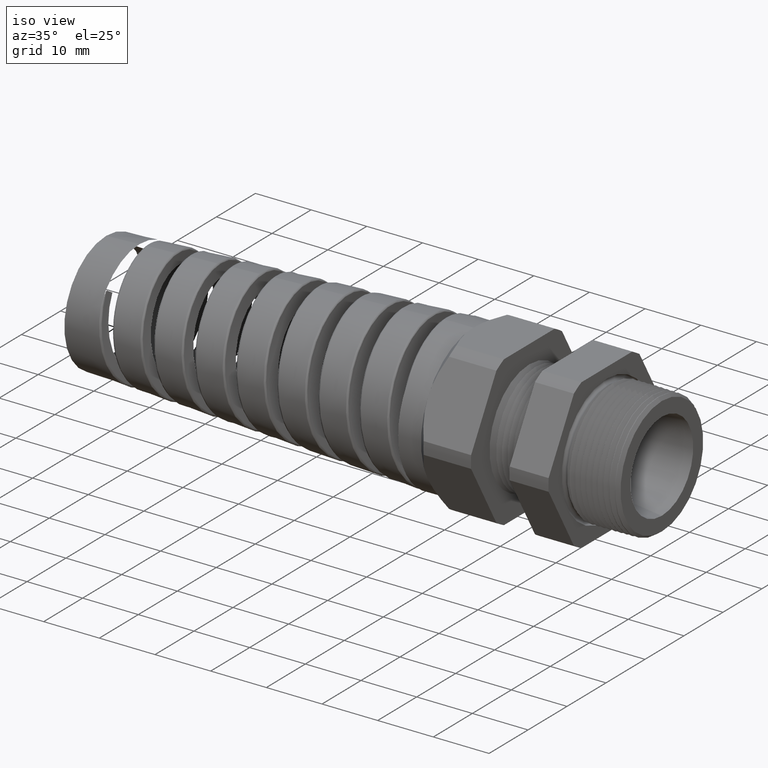
[diagram: clean part render]
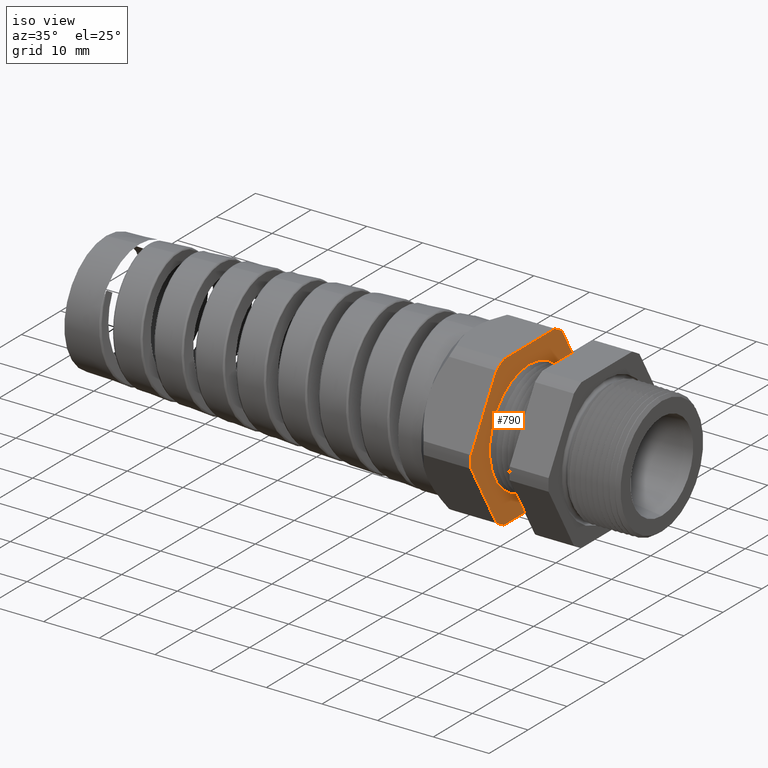
[diagram: same view with one face highlighted and labeled with its STEP entity id]
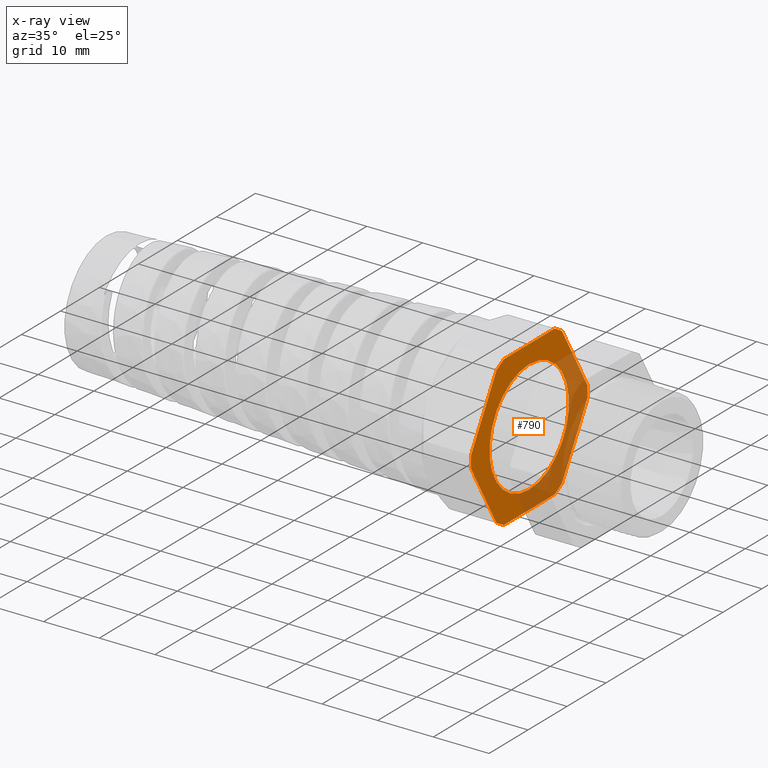
[diagram: x-ray of the same camera — body ghosted, the highlighted face saturated]
A machine part, iso view. The second image highlights one B-rep face of the part: STEP entity #790.
The next image is the same camera in x-ray: the body ghosted, the highlighted face saturated — about 39% of this face is hidden behind the body in this view.
In plain terms, the highlighted planar face has unit normal (1, 0, 0).
Its self-contained STEP definition (entity closure, byte-faithful):
#140 = EDGE_CURVE ( 'NONE', #187, #221, #7481, .T. ) ;
#187 = VERTEX_POINT ( 'NONE', #4915 ) ;
#193 = EDGE_CURVE ( 'NONE', #295, #246, #4912, .T. ) ;
#203 = VERTEX_POINT ( 'NONE', #4874 ) ;
#205 = EDGE_CURVE ( 'NONE', #246, #203, #4873, .T. ) ;
#210 = VERTEX_POINT ( 'NONE', #4860 ) ;
#212 = EDGE_CURVE ( 'NONE', #221, #210, #4859, .T. ) ;
#221 = VERTEX_POINT ( 'NONE', #4834 ) ;
#231 = EDGE_CURVE ( 'NONE', #203, #187, #4799, .T. ) ;
#239 = VERTEX_POINT ( 'NONE', #4774 ) ;
#241 = EDGE_CURVE ( 'NONE', #253, #239, #4773, .T. ) ;
#246 = VERTEX_POINT ( 'NONE', #4758 ) ;
#253 = VERTEX_POINT ( 'NONE', #4746 ) ;
#255 = EDGE_CURVE ( 'NONE', #210, #253, #4745, .T. ) ;
#295 = VERTEX_POINT ( 'NONE', #4702 ) ;
#340 = VERTEX_POINT ( 'NONE', #5075 ) ;
#342 = EDGE_CURVE ( 'NONE', #353, #340, #5074, .T. ) ;
#353 = VERTEX_POINT ( 'NONE', #5038 ) ;
#355 = EDGE_CURVE ( 'NONE', #396, #353, #5037, .T. ) ;
#396 = VERTEX_POINT ( 'NONE', #4945 ) ;
#398 = EDGE_CURVE ( 'NONE', #442, #396, #4944, .T. ) ;
#416 = EDGE_CURVE ( 'NONE', #239, #442, #7599, .T. ) ;
#442 = VERTEX_POINT ( 'NONE', #7846 ) ;
#447 = EDGE_CURVE ( 'NONE', #340, #295, #7844, .T. ) ;
#722 = EDGE_LOOP ( 'NONE', ( #723, #2024, #2022, #4216, #4215, #4214, #4213, #4212, #4123, #4119, #4117, #4116 ) ) ;
#723 = ORIENTED_EDGE ( 'NONE', *, *, #447, .T. ) ;
#724 = ORIENTED_EDGE ( 'NONE', *, *, #727, .F. ) ;
#725 = ORIENTED_EDGE ( 'NONE', *, *, #3708, .F. ) ;
#726 = EDGE_LOOP ( 'NONE', ( #724, #725 ) ) ;
#727 = EDGE_CURVE ( 'NONE', #3709, #3699, #9076, .T. ) ;
#790 = ADVANCED_FACE ( 'NONE', ( #9151, #9150 ), #9149, .T. ) ;
#2022 = ORIENTED_EDGE ( 'NONE', *, *, #205, .T. ) ;
#2024 = ORIENTED_EDGE ( 'NONE', *, *, #193, .T. ) ;
#3699 = VERTEX_POINT ( 'NONE', #9992 ) ;
#3708 = EDGE_CURVE ( 'NONE', #3699, #3709, #9976, .T. ) ;
#3709 = VERTEX_POINT ( 'NONE', #9972 ) ;
#4116 = ORIENTED_EDGE ( 'NONE', *, *, #342, .T. ) ;
#4117 = ORIENTED_EDGE ( 'NONE', *, *, #355, .T. ) ;
#4119 = ORIENTED_EDGE ( 'NONE', *, *, #398, .T. ) ;
#4123 = ORIENTED_EDGE ( 'NONE', *, *, #416, .T. ) ;
#4212 = ORIENTED_EDGE ( 'NONE', *, *, #241, .T. ) ;
#4213 = ORIENTED_EDGE ( 'NONE', *, *, #255, .T. ) ;
#4214 = ORIENTED_EDGE ( 'NONE', *, *, #212, .T. ) ;
#4215 = ORIENTED_EDGE ( 'NONE', *, *, #140, .T. ) ;
#4216 = ORIENTED_EDGE ( 'NONE', *, *, #231, .T. ) ;
#4702 = CARTESIAN_POINT ( 'NONE',  ( -0.8581889763779526600, 0.5866618723924790200, -0.04387183015273724000 ) ) ;
#4742 = DIRECTION ( 'NONE',  ( 0.0000000000000000000, -0.4999999999999998300, -0.8660254037844388200 ) ) ;
#4743 = VECTOR ( 'NONE', #4742, 39.37007874015748100 ) ;
#4744 = CARTESIAN_POINT ( 'NONE',  ( -0.8581889763779526600, -0.3588684640057526700, 0.4384215871078337400 ) ) ;
#4745 = LINE ( 'NONE', #4744, #4743 ) ;
#4746 = CARTESIAN_POINT ( 'NONE',  ( -0.8581889763779526600, -0.5866618723924791300, 0.04387183015273703200 ) ) ;
#4758 = CARTESIAN_POINT ( 'NONE',  ( -0.8581889763779526600, 0.5866618723924790200, 0.04387183015273755900 ) ) ;
#4769 = DIRECTION ( 'NONE',  ( 0.0000000000000000000, 0.0000000000000000000, -1.000000000000000000 ) ) ;
#4770 = DIRECTION ( 'NONE',  ( 1.000000000000000000, 0.0000000000000000000, 0.0000000000000000000 ) ) ;
#4771 = CARTESIAN_POINT ( 'NONE',  ( -0.8581889763779526600, 0.0000000000000000000, 0.0000000000000000000 ) ) ;
#4772 = AXIS2_PLACEMENT_3D ( 'NONE', #4771, #4770, #4769 ) ;
#4773 = CIRCLE ( 'NONE', #4772, 0.5883000000000000500 ) ;
#4774 = CARTESIAN_POINT ( 'NONE',  ( -0.8581889763779526600, -0.5866618723924791300, -0.04387183015273717100 ) ) ;
#4795 = DIRECTION ( 'NONE',  ( 0.0000000000000000000, 0.0000000000000000000, -1.000000000000000000 ) ) ;
#4796 = DIRECTION ( 'NONE',  ( 1.000000000000000000, 0.0000000000000000000, 0.0000000000000000000 ) ) ;
#4797 = CARTESIAN_POINT ( 'NONE',  ( -0.8581889763779526600, 0.0000000000000000000, 0.0000000000000000000 ) ) ;
#4798 = AXIS2_PLACEMENT_3D ( 'NONE', #4797, #4796, #4795 ) ;
#4799 = CIRCLE ( 'NONE', #4798, 0.5882999999999999300 ) ;
#4834 = CARTESIAN_POINT ( 'NONE',  ( -0.8581889763779526600, -0.2553368167734533200, 0.5299999999999999200 ) ) ;
#4855 = DIRECTION ( 'NONE',  ( 0.0000000000000000000, 0.0000000000000000000, -1.000000000000000000 ) ) ;
#4856 = DIRECTION ( 'NONE',  ( 1.000000000000000000, 0.0000000000000000000, 0.0000000000000000000 ) ) ;
#4857 = CARTESIAN_POINT ( 'NONE',  ( -0.8581889763779526600, 0.0000000000000000000, 0.0000000000000000000 ) ) ;
#4858 = AXIS2_PLACEMENT_3D ( 'NONE', #4857, #4856, #4855 ) ;
#4859 = CIRCLE ( 'NONE', #4858, 0.5882999999999999300 ) ;
#4860 = CARTESIAN_POINT ( 'NONE',  ( -0.8581889763779526600, -0.3313250556190262000, 0.4861281698472627600 ) ) ;
#4870 = DIRECTION ( 'NONE',  ( 0.0000000000000000000, -0.4999999999999998900, 0.8660254037844386000 ) ) ;
#4871 = VECTOR ( 'NONE', #4870, 39.37007874015748100 ) ;
#4872 = CARTESIAN_POINT ( 'NONE',  ( -0.8581889763779526600, 0.5591184640057527100, 0.09157841289216625500 ) ) ;
#4873 = LINE ( 'NONE', #4872, #4871 ) ;
#4874 = CARTESIAN_POINT ( 'NONE',  ( -0.8581889763779526600, 0.3313250556190263700, 0.4861281698472626500 ) ) ;
#4904 = DIRECTION ( 'NONE',  ( 0.0000000000000000000, 0.0000000000000000000, -1.000000000000000000 ) ) ;
#4905 = DIRECTION ( 'NONE',  ( 1.000000000000000000, 0.0000000000000000000, 0.0000000000000000000 ) ) ;
#4906 = CARTESIAN_POINT ( 'NONE',  ( -0.8581889763779526600, 0.0000000000000000000, 0.0000000000000000000 ) ) ;
#4907 = AXIS2_PLACEMENT_3D ( 'NONE', #4906, #4905, #4904 ) ;
#4912 = CIRCLE ( 'NONE', #4907, 0.5882999999999999300 ) ;
#4915 = CARTESIAN_POINT ( 'NONE',  ( -0.8581889763779526600, 0.2553368167734530500, 0.5300000000000001400 ) ) ;
#4940 = DIRECTION ( 'NONE',  ( 0.0000000000000000000, 0.0000000000000000000, -1.000000000000000000 ) ) ;
#4941 = DIRECTION ( 'NONE',  ( 1.000000000000000000, 0.0000000000000000000, 0.0000000000000000000 ) ) ;
#4942 = CARTESIAN_POINT ( 'NONE',  ( -0.8581889763779526600, 0.0000000000000000000, 0.0000000000000000000 ) ) ;
#4943 = AXIS2_PLACEMENT_3D ( 'NONE', #4942, #4941, #4940 ) ;
#4944 = CIRCLE ( 'NONE', #4943, 0.5883000000000000500 ) ;
#4945 = CARTESIAN_POINT ( 'NONE',  ( -0.8581889763779526600, -0.2553368167734529900, -0.5300000000000001400 ) ) ;
#5034 = DIRECTION ( 'NONE',  ( 0.0000000000000000000, 1.000000000000000000, 0.0000000000000000000 ) ) ;
#5035 = VECTOR ( 'NONE', #5034, 39.37007874015748100 ) ;
#5036 = CARTESIAN_POINT ( 'NONE',  ( -0.8581889763779526600, 0.4005000000000000200, -0.5300000000000001400 ) ) ;
#5037 = LINE ( 'NONE', #5036, #5035 ) ;
#5038 = CARTESIAN_POINT ( 'NONE',  ( -0.8581889763779526600, 0.2553368167734529900, -0.5300000000000001400 ) ) ;
#5070 = DIRECTION ( 'NONE',  ( 0.0000000000000000000, 0.0000000000000000000, -1.000000000000000000 ) ) ;
#5071 = DIRECTION ( 'NONE',  ( 1.000000000000000000, 0.0000000000000000000, 0.0000000000000000000 ) ) ;
#5072 = CARTESIAN_POINT ( 'NONE',  ( -0.8581889763779526600, 0.0000000000000000000, 0.0000000000000000000 ) ) ;
#5073 = AXIS2_PLACEMENT_3D ( 'NONE', #5072, #5071, #5070 ) ;
#5074 = CIRCLE ( 'NONE', #5073, 0.5882999999999999300 ) ;
#5075 = CARTESIAN_POINT ( 'NONE',  ( -0.8581889763779526600, 0.3313250556190263100, -0.4861281698472627000 ) ) ;
#7478 = DIRECTION ( 'NONE',  ( 0.0000000000000000000, -1.000000000000000000, 0.0000000000000000000 ) ) ;
#7479 = VECTOR ( 'NONE', #7478, 39.37007874015748100 ) ;
#7480 = CARTESIAN_POINT ( 'NONE',  ( -0.8581889763779526600, 0.4005000000000000200, 0.5300000000000001400 ) ) ;
#7481 = LINE ( 'NONE', #7480, #7479 ) ;
#7596 = DIRECTION ( 'NONE',  ( 0.0000000000000000000, 0.5000000000000002200, -0.8660254037844386000 ) ) ;
#7597 = VECTOR ( 'NONE', #7596, 39.37007874015747400 ) ;
#7598 = CARTESIAN_POINT ( 'NONE',  ( -0.8581889763779526600, -0.3588684640057526700, -0.4384215871078340800 ) ) ;
#7599 = LINE ( 'NONE', #7598, #7597 ) ;
#7835 = DIRECTION ( 'NONE',  ( 0.0000000000000000000, 0.4999999999999998300, 0.8660254037844388200 ) ) ;
#7836 = VECTOR ( 'NONE', #7835, 39.37007874015748100 ) ;
#7843 = CARTESIAN_POINT ( 'NONE',  ( -0.8581889763779526600, 0.5591184640057526000, -0.09157841289216618600 ) ) ;
#7844 = LINE ( 'NONE', #7843, #7836 ) ;
#7846 = CARTESIAN_POINT ( 'NONE',  ( -0.8581889763779526600, -0.3313250556190258700, -0.4861281698472630400 ) ) ;
#9072 = DIRECTION ( 'NONE',  ( 0.0000000000000000000, 0.0000000000000000000, -1.000000000000000000 ) ) ;
#9073 = DIRECTION ( 'NONE',  ( 1.000000000000000000, 0.0000000000000000000, 0.0000000000000000000 ) ) ;
#9074 = CARTESIAN_POINT ( 'NONE',  ( -0.8581889763779526600, 0.0000000000000000000, 0.0000000000000000000 ) ) ;
#9075 = AXIS2_PLACEMENT_3D ( 'NONE', #9074, #9073, #9072 ) ;
#9076 = CIRCLE ( 'NONE', #9075, 0.4005000000000000200 ) ;
#9145 = DIRECTION ( 'NONE',  ( 0.0000000000000000000, 0.0000000000000000000, -1.000000000000000000 ) ) ;
#9146 = DIRECTION ( 'NONE',  ( 1.000000000000000000, 0.0000000000000000000, 0.0000000000000000000 ) ) ;
#9147 = CARTESIAN_POINT ( 'NONE',  ( -0.8581889763779526600, 0.4005000000000000200, 0.0000000000000000000 ) ) ;
#9148 = AXIS2_PLACEMENT_3D ( 'NONE', #9147, #9146, #9145 ) ;
#9149 = PLANE ( 'NONE',  #9148 ) ;
#9150 = FACE_OUTER_BOUND ( 'NONE', #722, .T. ) ;
#9151 = FACE_BOUND ( 'NONE', #726, .T. ) ;
#9972 = CARTESIAN_POINT ( 'NONE',  ( -0.8581889763779526600, 0.0000000000000000000, 0.4005000000000000200 ) ) ;
#9973 = DIRECTION ( 'NONE',  ( 0.0000000000000000000, 0.0000000000000000000, -1.000000000000000000 ) ) ;
#9974 = DIRECTION ( 'NONE',  ( 1.000000000000000000, 0.0000000000000000000, 0.0000000000000000000 ) ) ;
#9975 = AXIS2_PLACEMENT_3D ( 'NONE', #9982, #9974, #9973 ) ;
#9976 = CIRCLE ( 'NONE', #9975, 0.4005000000000000200 ) ;
#9982 = CARTESIAN_POINT ( 'NONE',  ( -0.8581889763779526600, 0.0000000000000000000, 0.0000000000000000000 ) ) ;
#9992 = CARTESIAN_POINT ( 'NONE',  ( -0.8581889763779526600, 4.904710430585149200E-017, -0.4005000000000000200 ) ) ;